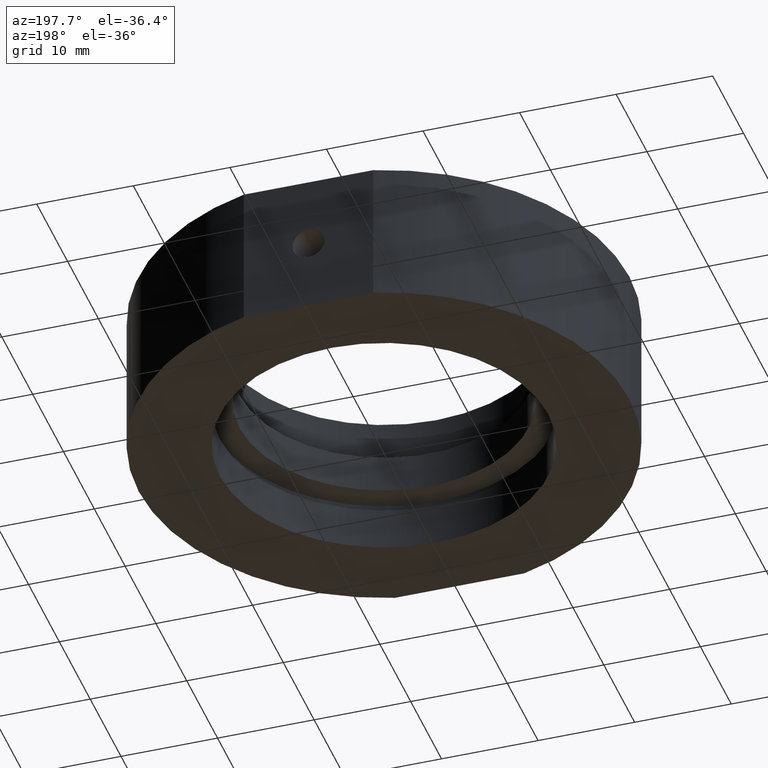
[diagram: clean part render]
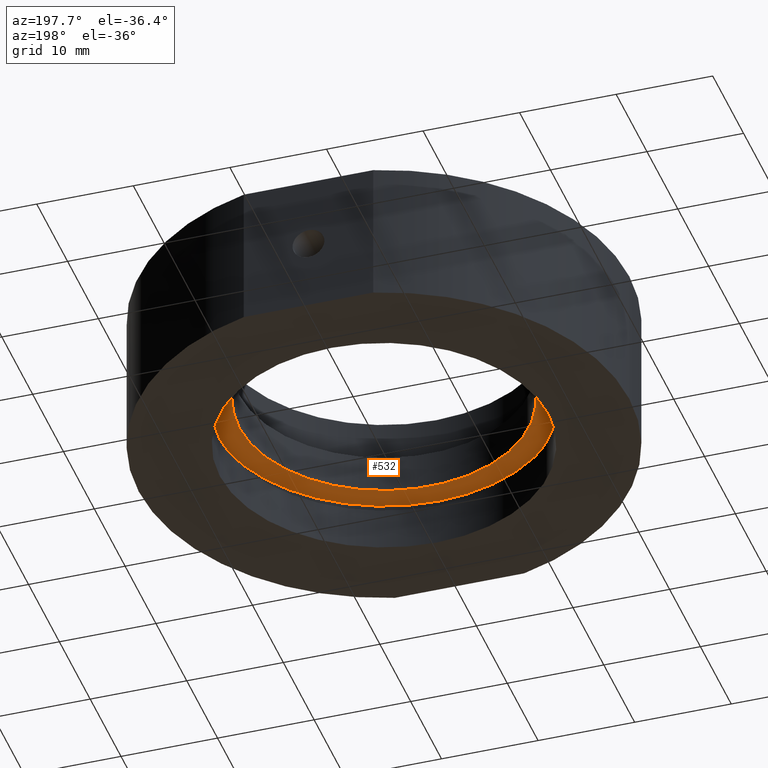
[diagram: same view with one face highlighted and labeled with its STEP entity id]
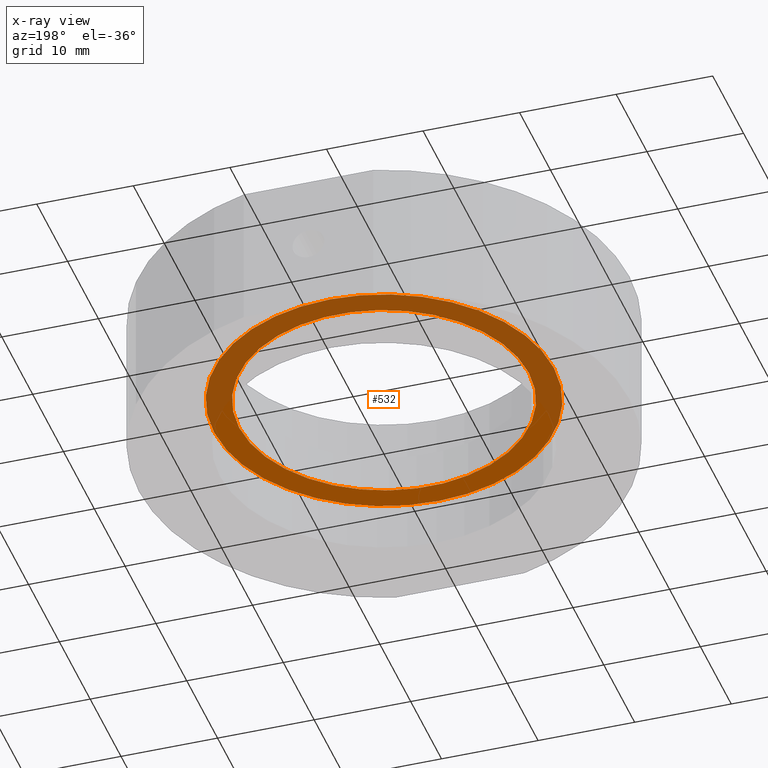
[diagram: x-ray of the same camera — body ghosted, the highlighted face saturated]
A machine part, auxiliary view. The second image highlights one B-rep face of the part: STEP entity #532.
The next image is the same camera in x-ray: the body ghosted, the highlighted face saturated — about 54% of this face is hidden behind the body in this view.
In plain terms, the highlighted planar face has unit normal (0, 0, 1).
Its self-contained STEP definition (entity closure, byte-faithful):
#6 = AXIS2_PLACEMENT_3D ( 'NONE', #294, #819, #522 ) ;
#30 = DIRECTION ( 'NONE',  ( -1.224646799147350500E-016, -0.0000000000000000000, -1.000000000000000000 ) ) ;
#44 = CIRCLE ( 'NONE', #415, 15.00000000000000000 ) ;
#81 = AXIS2_PLACEMENT_3D ( 'NONE', #190, #106, #103 ) ;
#98 = DIRECTION ( 'NONE',  ( -1.000000000000000000, 0.0000000000000000000, 1.156482317317871500E-016 ) ) ;
#103 = DIRECTION ( 'NONE',  ( -1.000000000000000000, 0.0000000000000000000, 1.232047923278982200E-016 ) ) ;
#106 = DIRECTION ( 'NONE',  ( -1.224646799147350500E-016, -0.0000000000000000000, -1.000000000000000000 ) ) ;
#134 = CIRCLE ( 'NONE', #6, 17.60000000000000100 ) ;
#179 = CARTESIAN_POINT ( 'NONE',  ( 15.00000000000000400, 1.836970198721029600E-015, -2.000000000000003600 ) ) ;
#190 = CARTESIAN_POINT ( 'NONE',  ( 3.666478391855845600E-015, 0.0000000000000000000, -2.000000000000001800 ) ) ;
#214 = AXIS2_PLACEMENT_3D ( 'NONE', #637, #565, #850 ) ;
#236 = EDGE_CURVE ( 'NONE', #757, #931, #861, .T. ) ;
#244 = EDGE_LOOP ( 'NONE', ( #862, #759 ) ) ;
#245 = VERTEX_POINT ( 'NONE', #179 ) ;
#285 = CARTESIAN_POINT ( 'NONE',  ( 15.00000000000000400, 0.0000000000000000000, -2.000000000000004400 ) ) ;
#294 = CARTESIAN_POINT ( 'NONE',  ( 3.666478391855845600E-015, 0.0000000000000000000, -2.000000000000001800 ) ) ;
#395 = CARTESIAN_POINT ( 'NONE',  ( 17.60000000000000500, 2.155378366499341600E-015, -2.000000000000004000 ) ) ;
#415 = AXIS2_PLACEMENT_3D ( 'NONE', #621, #30, #98 ) ;
#442 = VERTEX_POINT ( 'NONE', #582 ) ;
#519 = DIRECTION ( 'NONE',  ( 1.000000000000000000, 0.0000000000000000000, -1.224646799147350500E-016 ) ) ;
#522 = DIRECTION ( 'NONE',  ( -1.000000000000000000, 0.0000000000000000000, 1.232047923278982200E-016 ) ) ;
#532 = ADVANCED_FACE ( 'NONE', ( #641, #780 ), #801, .F. ) ;
#552 = AXIS2_PLACEMENT_3D ( 'NONE', #285, #956, #519 ) ;
#565 = DIRECTION ( 'NONE',  ( -1.224646799147350500E-016, -0.0000000000000000000, -1.000000000000000000 ) ) ;
#581 = CARTESIAN_POINT ( 'NONE',  ( -17.59999999999999800, 0.0000000000000000000, -1.999999999999999600 ) ) ;
#582 = CARTESIAN_POINT ( 'NONE',  ( -14.99999999999999600, 0.0000000000000000000, -2.000000000000000000 ) ) ;
#588 = ORIENTED_EDGE ( 'NONE', *, *, #659, .F. ) ;
#621 = CARTESIAN_POINT ( 'NONE',  ( 3.666478391855845600E-015, 0.0000000000000000000, -2.000000000000001800 ) ) ;
#625 = EDGE_CURVE ( 'NONE', #931, #757, #134, .T. ) ;
#637 = CARTESIAN_POINT ( 'NONE',  ( 3.666478391855845600E-015, 0.0000000000000000000, -2.000000000000001800 ) ) ;
#641 = FACE_BOUND ( 'NONE', #769, .T. ) ;
#659 = EDGE_CURVE ( 'NONE', #245, #442, #44, .T. ) ;
#757 = VERTEX_POINT ( 'NONE', #395 ) ;
#759 = ORIENTED_EDGE ( 'NONE', *, *, #236, .T. ) ;
#769 = EDGE_LOOP ( 'NONE', ( #829, #588 ) ) ;
#780 = FACE_OUTER_BOUND ( 'NONE', #244, .T. ) ;
#801 = PLANE ( 'NONE',  #552 ) ;
#810 = EDGE_CURVE ( 'NONE', #442, #245, #925, .T. ) ;
#819 = DIRECTION ( 'NONE',  ( -1.224646799147350500E-016, -0.0000000000000000000, -1.000000000000000000 ) ) ;
#829 = ORIENTED_EDGE ( 'NONE', *, *, #810, .F. ) ;
#850 = DIRECTION ( 'NONE',  ( -1.000000000000000000, 0.0000000000000000000, 1.156482317317871500E-016 ) ) ;
#861 = CIRCLE ( 'NONE', #81, 17.60000000000000100 ) ;
#862 = ORIENTED_EDGE ( 'NONE', *, *, #625, .T. ) ;
#925 = CIRCLE ( 'NONE', #214, 15.00000000000000000 ) ;
#931 = VERTEX_POINT ( 'NONE', #581 ) ;
#956 = DIRECTION ( 'NONE',  ( 1.224646799147350500E-016, 0.0000000000000000000, 1.000000000000000000 ) ) ;